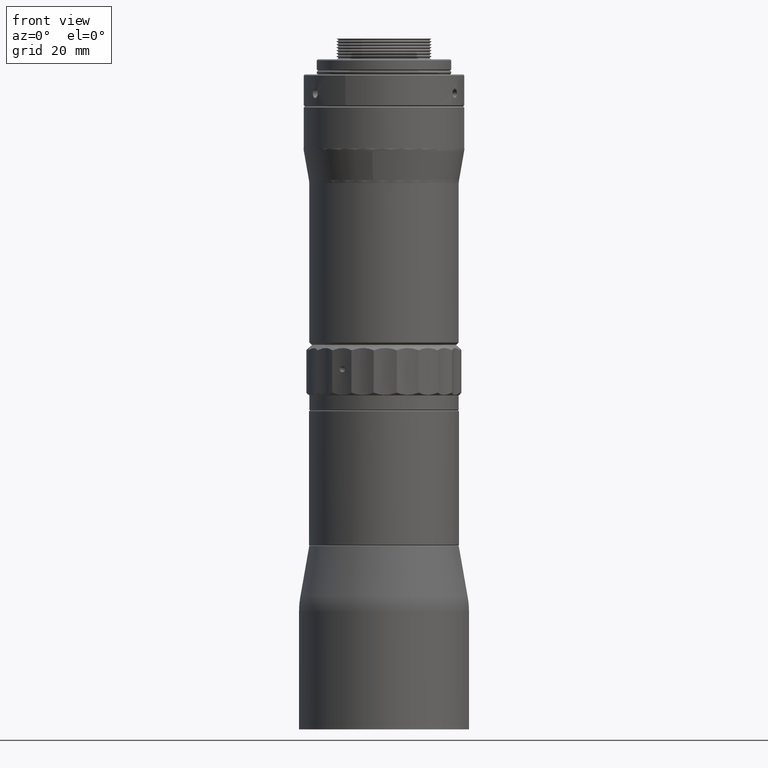
[diagram: clean part render]
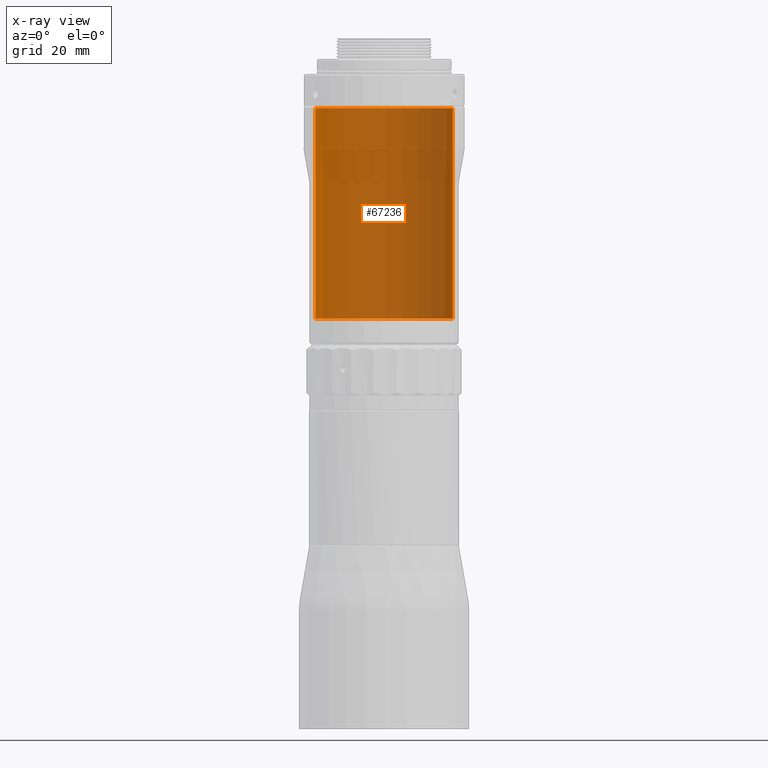
[diagram: x-ray — body ghosted, one internal face saturated and labeled with its STEP entity id]
A machine part, front view, then the same camera in x-ray: the body is ghosted and one INTERNAL B-rep face — a face not visible from any outside direction — is saturated and labeled: STEP entity #67236.
In plain terms, the highlighted cylindrical surface (partial cylindrical patch) has radius 18.5 mm, axis along (0, 0, -1).
Its self-contained STEP definition (entity closure, byte-faithful):
#884 = VERTEX_POINT ( 'NONE', #7566 ) ;
#6472 = DIRECTION ( 'NONE',  ( 3.967215546937156200E-018, 2.717644169619216600E-017, -1.000000000000000000 ) ) ;
#7566 = CARTESIAN_POINT ( 'NONE',  ( -18.30597660283129400, 2.672305513447529500, 76.72882109615474600 ) ) ;
#8713 = LINE ( 'NONE', #43200, #29568 ) ;
#10411 = CARTESIAN_POINT ( 'NONE',  ( -18.30597660283124400, 2.672305513447518400, 20.70000005993522100 ) ) ;
#18509 = FACE_OUTER_BOUND ( 'NONE', #23381, .T. ) ;
#23381 = EDGE_LOOP ( 'NONE', ( #55148, #32962, #53891, #41496 ) ) ;
#23980 = VERTEX_POINT ( 'NONE', #10411 ) ;
#24019 = CARTESIAN_POINT ( 'NONE',  ( 18.30597660283099200, -2.672305513447521500, 20.70000005993522100 ) ) ;
#24527 = CIRCLE ( 'NONE', #27080, 18.49999989569195300 ) ;
#27080 = AXIS2_PLACEMENT_3D ( 'NONE', #67441, #40314, #51294 ) ;
#27225 = VERTEX_POINT ( 'NONE', #24019 ) ;
#28355 = DIRECTION ( 'NONE',  ( 0.9895122543808219100, -0.1444489474872815700, 0.0000000000000000000 ) ) ;
#29568 = VECTOR ( 'NONE', #60034, 1000.000000000000000 ) ;
#32962 = ORIENTED_EDGE ( 'NONE', *, *, #69858, .T. ) ;
#34831 = CARTESIAN_POINT ( 'NONE',  ( 18.30597660283093800, -2.672305513447516200, 76.72882109615474600 ) ) ;
#37171 = LINE ( 'NONE', #39459, #39736 ) ;
#39343 = CARTESIAN_POINT ( 'NONE',  ( -1.249000902703301100E-013, 0.0000000000000000000, -7.500000550267560400 ) ) ;
#39459 = CARTESIAN_POINT ( 'NONE',  ( -18.30597660283124000, 2.672305513447519800, -7.500000550267560400 ) ) ;
#39736 = VECTOR ( 'NONE', #56297, 1000.000000000000000 ) ;
#39818 = DIRECTION ( 'NONE',  ( -3.967215546937156200E-018, -2.717644169619216600E-017, 1.000000000000000000 ) ) ;
#40314 = DIRECTION ( 'NONE',  ( 3.967215546937156200E-018, 2.717644169619216600E-017, -1.000000000000000000 ) ) ;
#41496 = ORIENTED_EDGE ( 'NONE', *, *, #42191, .F. ) ;
#42191 = EDGE_CURVE ( 'NONE', #47187, #27225, #8713, .T. ) ;
#42938 = CIRCLE ( 'NONE', #48804, 18.49999989569195300 ) ;
#43200 = CARTESIAN_POINT ( 'NONE',  ( 18.30597660283099200, -2.672305513447521500, -7.500000550267560400 ) ) ;
#46441 = CYLINDRICAL_SURFACE ( 'NONE', #53948, 18.49999989569195300 ) ;
#47187 = VERTEX_POINT ( 'NONE', #34831 ) ;
#47922 = EDGE_CURVE ( 'NONE', #884, #47187, #24527, .T. ) ;
#48804 = AXIS2_PLACEMENT_3D ( 'NONE', #51268, #39818, #28355 ) ;
#50283 = DIRECTION ( 'NONE',  ( 0.9895122543808219100, -0.1444489474872815700, 0.0000000000000000000 ) ) ;
#51268 = CARTESIAN_POINT ( 'NONE',  ( -1.249000902703301100E-013, 0.0000000000000000000, 20.70000005993522100 ) ) ;
#51294 = DIRECTION ( 'NONE',  ( 0.9895122543808219100, -0.1444489474872815700, 0.0000000000000000000 ) ) ;
#53891 = ORIENTED_EDGE ( 'NONE', *, *, #67274, .F. ) ;
#53948 = AXIS2_PLACEMENT_3D ( 'NONE', #39343, #6472, #50283 ) ;
#55148 = ORIENTED_EDGE ( 'NONE', *, *, #47922, .F. ) ;
#56297 = DIRECTION ( 'NONE',  ( 3.967215546937156200E-018, 2.717644169619216600E-017, -1.000000000000000000 ) ) ;
#60034 = DIRECTION ( 'NONE',  ( 3.967215546937156200E-018, 2.717644169619216600E-017, -1.000000000000000000 ) ) ;
#67236 = ADVANCED_FACE ( 'NONE', ( #18509 ), #46441, .F. ) ;
#67274 = EDGE_CURVE ( 'NONE', #27225, #23980, #42938, .T. ) ;
#67441 = CARTESIAN_POINT ( 'NONE',  ( -1.249000902703301100E-013, 0.0000000000000000000, 76.72882109615474600 ) ) ;
#69858 = EDGE_CURVE ( 'NONE', #884, #23980, #37171, .T. ) ;